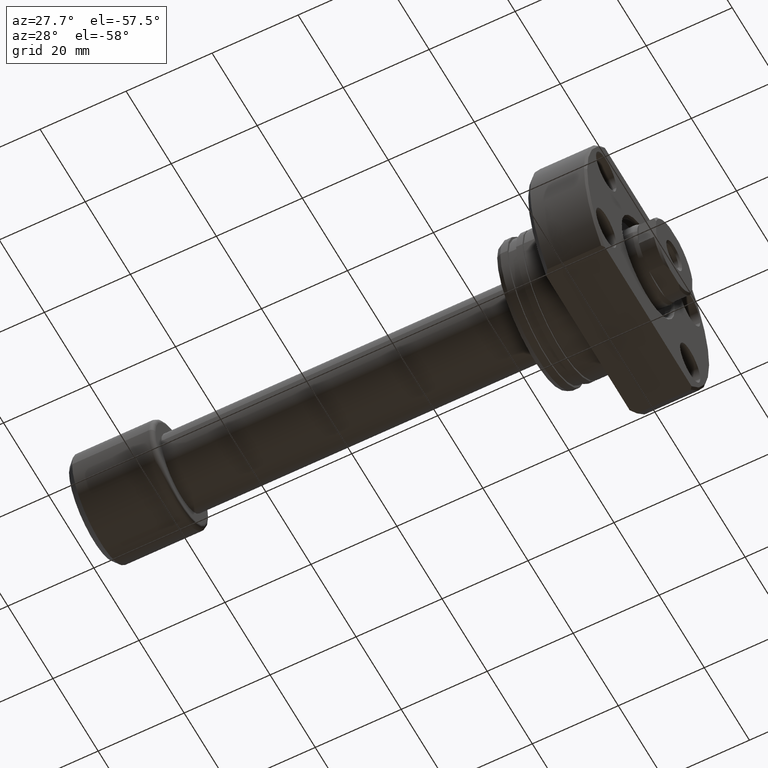
[diagram: clean part render]
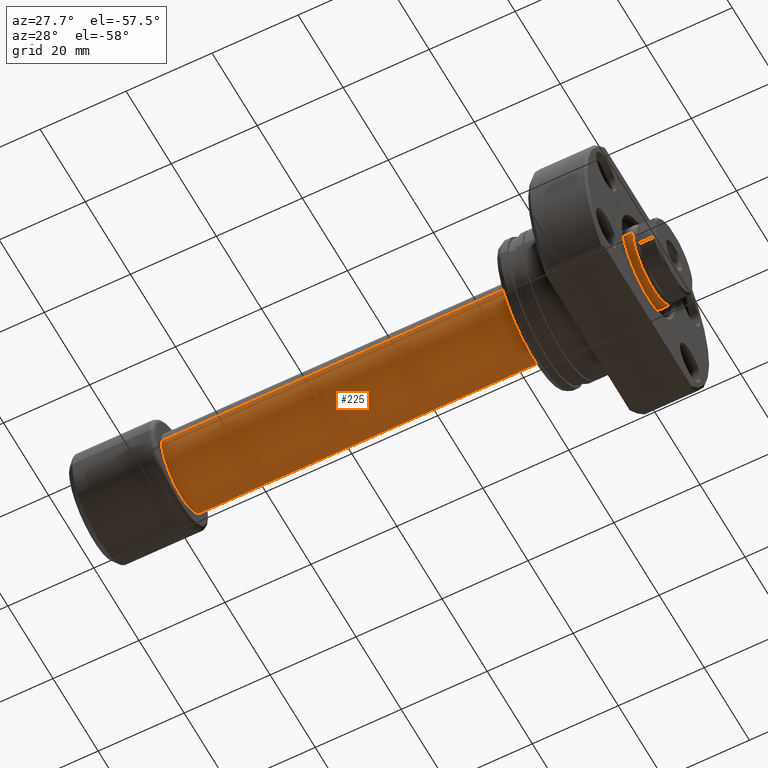
[diagram: same view with one face highlighted and labeled with its STEP entity id]
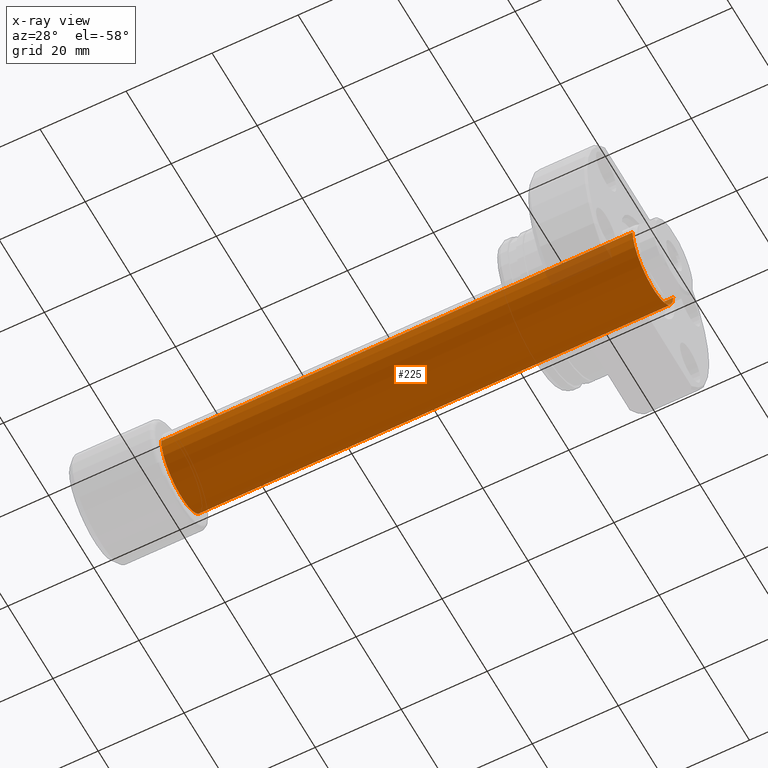
[diagram: x-ray of the same camera — body ghosted, the highlighted face saturated]
A machine part, auxiliary view. The second image highlights one B-rep face of the part: STEP entity #225.
The next image is the same camera in x-ray: the body ghosted, the highlighted face saturated — about 3% of this face is hidden behind the body in this view.
In plain terms, the highlighted cylindrical surface (partial cylindrical patch) has radius 9 mm, axis along (-1, -0, -0).
Its self-contained STEP definition (entity closure, byte-faithful):
#74 = CARTESIAN_POINT ( 'NONE',  ( 0.000000000000000000, 0.000000000000000000, 0.000000000000000000 ) ) ;
#132 = DIRECTION ( 'NONE',  ( -1.000000000000000000, -1.069542322069065801E-17, -0.000000000000000000 ) ) ;
#190 = CARTESIAN_POINT ( 'NONE',  ( 9.625880898621698056E-17, -9.000000000000097700, 0.000000000000000000 ) ) ;
#225 = ADVANCED_FACE ( 'NONE', ( #323 ), #2314, .T. ) ;
#323 = FACE_OUTER_BOUND ( 'NONE', #786, .T. ) ;
#409 = ORIENTED_EDGE ( 'NONE', *, *, #712, .F. ) ;
#421 = LINE ( 'NONE', #190, #2162 ) ;
#429 = VERTEX_POINT ( 'NONE', #1094 ) ;
#709 = CIRCLE ( 'NONE', #879, 9.000000000000000000 ) ;
#712 = EDGE_CURVE ( 'NONE', #1432, #1901, #2009, .T. ) ;
#786 = EDGE_LOOP ( 'NONE', ( #409, #1980, #1523, #1862 ) ) ;
#879 = AXIS2_PLACEMENT_3D ( 'NONE', #2490, #987, #1725 ) ;
#987 = DIRECTION ( 'NONE',  ( -1.000000000000000000, -1.069542322069065801E-17, -0.000000000000000000 ) ) ;
#995 = VERTEX_POINT ( 'NONE', #1384 ) ;
#1094 = CARTESIAN_POINT ( 'NONE',  ( 130.0667575123237611, -9.000000000000193623, 0.000000000000000000 ) ) ;
#1285 = DIRECTION ( 'NONE',  ( -1.000000000000000000, -1.069542322069065801E-17, -0.000000000000000000 ) ) ;
#1295 = DIRECTION ( 'NONE',  ( 1.069542322069065955E-17, -1.000000000000000000, 0.000000000000000000 ) ) ;
#1384 = CARTESIAN_POINT ( 'NONE',  ( 20.39999999999999503, -9.000000000000000000, 0.000000000000000000 ) ) ;
#1432 = VERTEX_POINT ( 'NONE', #2006 ) ;
#1523 = ORIENTED_EDGE ( 'NONE', *, *, #2552, .T. ) ;
#1611 = DIRECTION ( 'NONE',  ( 0.000000000000000000, -1.000000000000000000, 0.000000000000000000 ) ) ;
#1670 = DIRECTION ( 'NONE',  ( -1.000000000000000000, -1.069542322069065801E-17, -0.000000000000000000 ) ) ;
#1725 = DIRECTION ( 'NONE',  ( 0.000000000000000000, -1.000000000000000000, 0.000000000000000000 ) ) ;
#1836 = DIRECTION ( 'NONE',  ( -1.000000000000000000, -1.069542322069065801E-17, -0.000000000000000000 ) ) ;
#1852 = CARTESIAN_POINT ( 'NONE',  ( 130.0667575123237611, 1.391119018537248741E-15, 0.000000000000000000 ) ) ;
#1862 = ORIENTED_EDGE ( 'NONE', *, *, #3021, .F. ) ;
#1901 = VERTEX_POINT ( 'NONE', #2117 ) ;
#1957 = AXIS2_PLACEMENT_3D ( 'NONE', #1852, #132, #1611 ) ;
#1980 = ORIENTED_EDGE ( 'NONE', *, *, #3169, .T. ) ;
#2006 = CARTESIAN_POINT ( 'NONE',  ( 130.0667575123237611, 9.000000000000195399, 1.102182119232641774E-15 ) ) ;
#2009 = LINE ( 'NONE', #2197, #2394 ) ;
#2117 = CARTESIAN_POINT ( 'NONE',  ( 20.39999999999999503, 9.000000000000000000, 1.102182119232623630E-15 ) ) ;
#2162 = VECTOR ( 'NONE', #1670, 1000.000000000000000 ) ;
#2197 = CARTESIAN_POINT ( 'NONE',  ( -9.625880898621698056E-17, 9.000000000000097700, 1.102182119232629941E-15 ) ) ;
#2277 = CIRCLE ( 'NONE', #1957, 9.000000000000195399 ) ;
#2314 = CYLINDRICAL_SURFACE ( 'NONE', #3138, 9.000000000000097700 ) ;
#2394 = VECTOR ( 'NONE', #1285, 1000.000000000000000 ) ;
#2490 = CARTESIAN_POINT ( 'NONE',  ( 20.39999999999999503, 2.181866337020893623E-16, 0.000000000000000000 ) ) ;
#2552 = EDGE_CURVE ( 'NONE', #429, #995, #421, .T. ) ;
#3021 = EDGE_CURVE ( 'NONE', #1901, #995, #709, .T. ) ;
#3138 = AXIS2_PLACEMENT_3D ( 'NONE', #74, #1836, #1295 ) ;
#3169 = EDGE_CURVE ( 'NONE', #1432, #429, #2277, .T. ) ;